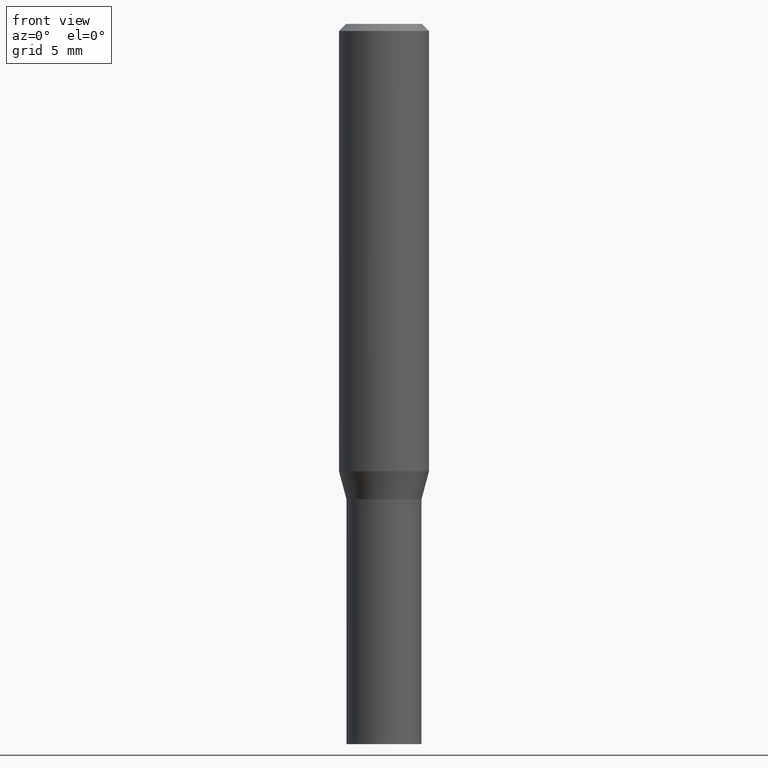
[diagram: clean part render]
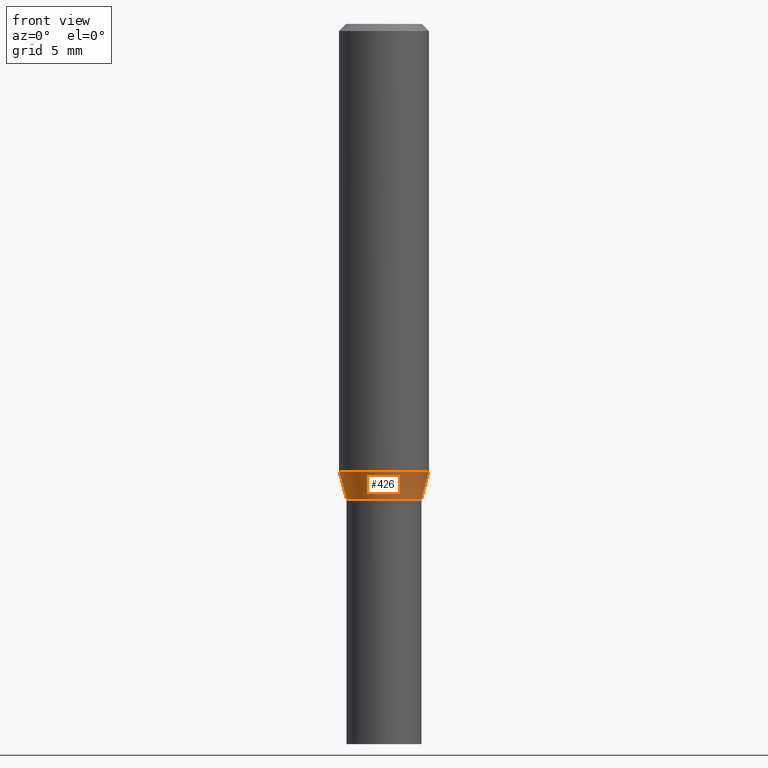
[diagram: same view with one face highlighted and labeled with its STEP entity id]
A machine part, front view. The second image highlights one B-rep face of the part: STEP entity #426.
In plain terms, the highlighted conical surface has half-angle 15 deg.
Its self-contained STEP definition (entity closure, byte-faithful):
#1 = CONICAL_SURFACE ( 'NONE', #105, 0.07810000000000004439, 0.2617993877991501850 ) ;
#4 = CIRCLE ( 'NONE', #417, 0.07810000000000004439 ) ;
#22 = DIRECTION ( 'NONE',  ( 0.2588190451025214611, 1.565188264969620982E-15, 0.9659258262890679791 ) ) ;
#28 = VECTOR ( 'NONE', #216, 39.37007874015748143 ) ;
#30 = LINE ( 'NONE', #428, #28 ) ;
#49 = VERTEX_POINT ( 'NONE', #57 ) ;
#57 = CARTESIAN_POINT ( 'NONE',  ( 0.09375000000000001388, -3.907293739496527425E-15, -0.9315934048615475138 ) ) ;
#62 = DIRECTION ( 'NONE',  ( 1.000000000000000000, -6.982962677686269077E-15, 0.000000000000000000 ) ) ;
#64 = CARTESIAN_POINT ( 'NONE',  ( 2.278182611636715174E-29, -3.252640988463440710E-15, -0.9315934048615475138 ) ) ;
#75 = VERTEX_POINT ( 'NONE', #319 ) ;
#94 = AXIS2_PLACEMENT_3D ( 'NONE', #64, #358, #121 ) ;
#105 = AXIS2_PLACEMENT_3D ( 'NONE', #110, #145, #252 ) ;
#110 = CARTESIAN_POINT ( 'NONE',  ( 2.421014118123285332E-29, -3.456566525454714328E-15, -0.9900000000000001021 ) ) ;
#121 = DIRECTION ( 'NONE',  ( 1.000000000000000000, -6.982962677686266711E-15, 0.000000000000000000 ) ) ;
#124 = CARTESIAN_POINT ( 'NONE',  ( 2.421014118123285332E-29, -3.456566525454714328E-15, -0.9900000000000001021 ) ) ;
#145 = DIRECTION ( 'NONE',  ( -2.445468806185136597E-29, 3.491481338843145583E-15, 1.000000000000000000 ) ) ;
#205 = VERTEX_POINT ( 'NONE', #290 ) ;
#216 = DIRECTION ( 'NONE',  ( -0.2588190451025214611, 5.211531920934550253E-15, 0.9659258262890679791 ) ) ;
#232 = EDGE_LOOP ( 'NONE', ( #373, #427, #266, #259 ) ) ;
#252 = DIRECTION ( 'NONE',  ( 1.000000000000000000, -6.982962677686269077E-15, 0.000000000000000000 ) ) ;
#259 = ORIENTED_EDGE ( 'NONE', *, *, #330, .F. ) ;
#266 = ORIENTED_EDGE ( 'NONE', *, *, #410, .T. ) ;
#273 = CARTESIAN_POINT ( 'NONE',  ( -0.09375000000000001388, -2.586507173688346391E-15, -0.9315934048615475138 ) ) ;
#281 = FACE_OUTER_BOUND ( 'NONE', #232, .T. ) ;
#290 = CARTESIAN_POINT ( 'NONE',  ( -0.07810000000000004439, -2.744069911257211227E-15, -0.9900000000000001021 ) ) ;
#292 = EDGE_CURVE ( 'NONE', #205, #413, #30, .T. ) ;
#303 = CIRCLE ( 'NONE', #94, 0.09375000000000001388 ) ;
#317 = VECTOR ( 'NONE', #22, 39.37007874015748143 ) ;
#319 = CARTESIAN_POINT ( 'NONE',  ( 0.07810000000000004439, -4.001935910582012553E-15, -0.9900000000000001021 ) ) ;
#330 = EDGE_CURVE ( 'NONE', #413, #49, #303, .T. ) ;
#348 = CARTESIAN_POINT ( 'NONE',  ( 0.07810000000000004439, -4.001935910582012553E-15, -0.9900000000000001021 ) ) ;
#354 = DIRECTION ( 'NONE',  ( -2.445468806185136597E-29, 3.491481338843145583E-15, 1.000000000000000000 ) ) ;
#358 = DIRECTION ( 'NONE',  ( -2.445468806185136597E-29, 3.491481338843145583E-15, 1.000000000000000000 ) ) ;
#371 = EDGE_CURVE ( 'NONE', #205, #75, #4, .T. ) ;
#373 = ORIENTED_EDGE ( 'NONE', *, *, #292, .F. ) ;
#410 = EDGE_CURVE ( 'NONE', #75, #49, #451, .T. ) ;
#413 = VERTEX_POINT ( 'NONE', #273 ) ;
#417 = AXIS2_PLACEMENT_3D ( 'NONE', #124, #354, #62 ) ;
#426 = ADVANCED_FACE ( 'NONE', ( #281 ), #1, .T. ) ;
#427 = ORIENTED_EDGE ( 'NONE', *, *, #371, .T. ) ;
#428 = CARTESIAN_POINT ( 'NONE',  ( -0.07810000000000004439, -2.901632648826075669E-15, -0.9900000000000001021 ) ) ;
#451 = LINE ( 'NONE', #348, #317 ) ;